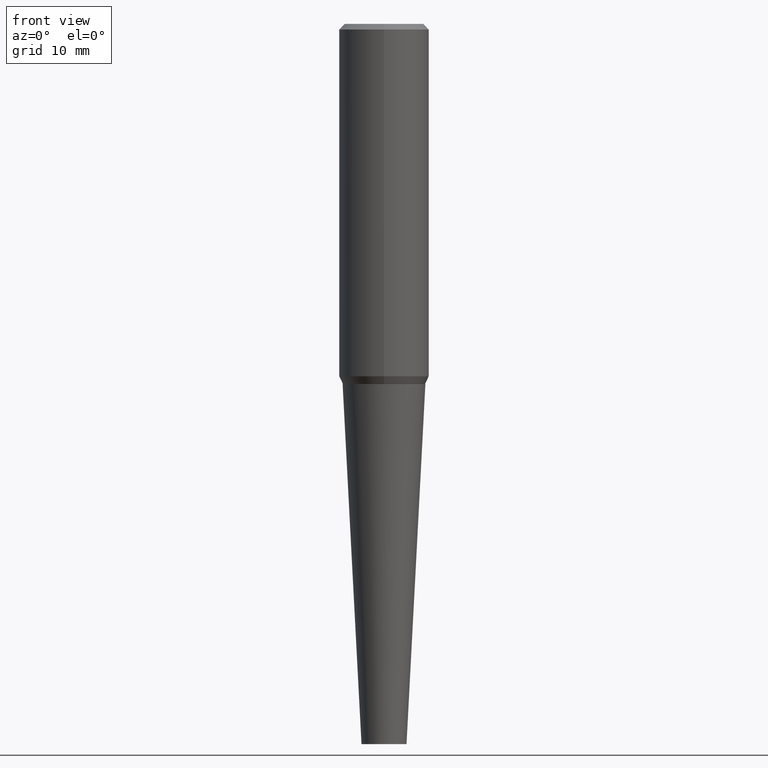
[diagram: clean part render]
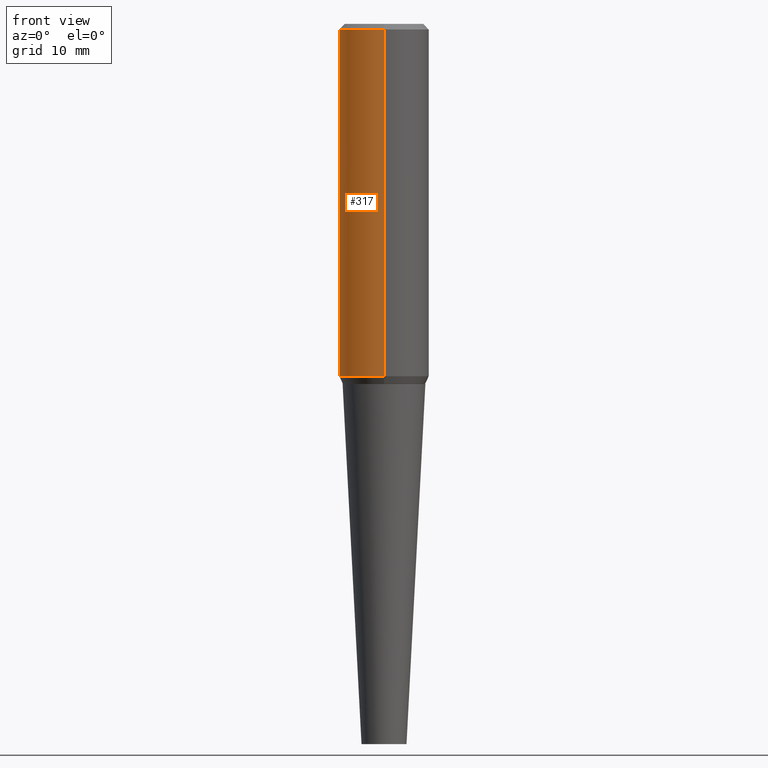
[diagram: same view with one face highlighted and labeled with its STEP entity id]
A machine part, front view. The second image highlights one B-rep face of the part: STEP entity #317.
In plain terms, the highlighted cylindrical surface (partial cylindrical patch) has radius 6.35 mm, axis along (-0, 0, 1).
Its self-contained STEP definition (entity closure, byte-faithful):
#5 = DIRECTION ( 'NONE',  ( -6.982962677686265133E-15, -1.000000000000000000, 3.207890312582139837E-15 ) ) ;
#9 = AXIS2_PLACEMENT_3D ( 'NONE', #265, #401, #5 ) ;
#13 = LINE ( 'NONE', #200, #180 ) ;
#18 = EDGE_CURVE ( 'NONE', #384, #403, #146, .T. ) ;
#21 = CARTESIAN_POINT ( 'NONE',  ( 1.776356839400248295E-15, 0.2499999999999997224, -7.828487236126975993E-16 ) ) ;
#25 = AXIS2_PLACEMENT_3D ( 'NONE', #416, #283, #29 ) ;
#26 = DIRECTION ( 'NONE',  ( -2.643499361395871506E-29, 3.207890312582139837E-15, 1.000000000000000000 ) ) ;
#29 = DIRECTION ( 'NONE',  ( -6.982962677686265922E-15, -1.000000000000000000, 3.278217592397117045E-15 ) ) ;
#39 = ORIENTED_EDGE ( 'NONE', *, *, #410, .F. ) ;
#50 = LINE ( 'NONE', #21, #170 ) ;
#57 = CARTESIAN_POINT ( 'NONE',  ( -2.571888878031194345E-30, -5.868569961396391316E-16, -0.03125000000000012490 ) ) ;
#59 = CARTESIAN_POINT ( 'NONE',  ( -1.715124499442888610E-15, -0.2500000000000010547, -0.03124999999999932693 ) ) ;
#78 = FACE_OUTER_BOUND ( 'NONE', #228, .T. ) ;
#141 = ORIENTED_EDGE ( 'NONE', *, *, #391, .T. ) ;
#146 = CIRCLE ( 'NONE', #226, 0.2500000000000004996 ) ;
#149 = CARTESIAN_POINT ( 'NONE',  ( -1.745740669421517768E-15, -0.2500000000000067168, -1.956714325658313269 ) ) ;
#156 = CARTESIAN_POINT ( 'NONE',  ( 1.745740669421567269E-15, 0.2499999999999998890, -0.03125000000000092981 ) ) ;
#162 = DIRECTION ( 'NONE',  ( -6.982962677686265133E-15, -1.000000000000000000, 3.209921392555503119E-15 ) ) ;
#170 = VECTOR ( 'NONE', #26, 39.37007874015748143 ) ;
#180 = VECTOR ( 'NONE', #263, 39.37007874015748143 ) ;
#200 = CARTESIAN_POINT ( 'NONE',  ( -1.745740669421571411E-15, -0.2500000000000006661, 8.210964326783736998E-16 ) ) ;
#226 = AXIS2_PLACEMENT_3D ( 'NONE', #57, #408, #162 ) ;
#228 = EDGE_LOOP ( 'NONE', ( #39, #141, #312, #389 ) ) ;
#263 = DIRECTION ( 'NONE',  ( -2.643499361395871506E-29, 3.207890312582139837E-15, 1.000000000000000000 ) ) ;
#265 = CARTESIAN_POINT ( 'NONE',  ( -3.397982428467408395E-30, -4.866104238714468673E-16, 1.912385453283800096E-17 ) ) ;
#269 = CYLINDRICAL_SURFACE ( 'NONE', #9, 0.2500000000000002220 ) ;
#271 = CIRCLE ( 'NONE', #25, 0.2499999999999999167 ) ;
#283 = DIRECTION ( 'NONE',  ( -2.643499361395871506E-29, 3.207890312582139837E-15, 1.000000000000000000 ) ) ;
#291 = EDGE_CURVE ( 'NONE', #400, #403, #13, .T. ) ;
#312 = ORIENTED_EDGE ( 'NONE', *, *, #291, .T. ) ;
#317 = ADVANCED_FACE ( 'NONE', ( #78 ), #269, .T. ) ;
#334 = VERTEX_POINT ( 'NONE', #397 ) ;
#384 = VERTEX_POINT ( 'NONE', #156 ) ;
#389 = ORIENTED_EDGE ( 'NONE', *, *, #18, .F. ) ;
#391 = EDGE_CURVE ( 'NONE', #334, #400, #271, .T. ) ;
#397 = CARTESIAN_POINT ( 'NONE',  ( 1.776356839400273342E-15, 0.2499999999999931721, -1.956714325658314824 ) ) ;
#400 = VERTEX_POINT ( 'NONE', #149 ) ;
#401 = DIRECTION ( 'NONE',  ( -2.643499361395871506E-29, 3.207890312582139837E-15, 1.000000000000000000 ) ) ;
#403 = VERTEX_POINT ( 'NONE', #59 ) ;
#408 = DIRECTION ( 'NONE',  ( -2.643499361395871506E-29, 3.207890312582139837E-15, 1.000000000000000000 ) ) ;
#410 = EDGE_CURVE ( 'NONE', #334, #384, #50, .T. ) ;
#416 = CARTESIAN_POINT ( 'NONE',  ( 4.832774827465166052E-29, -6.763535353641446132E-15, -1.956714325658313935 ) ) ;